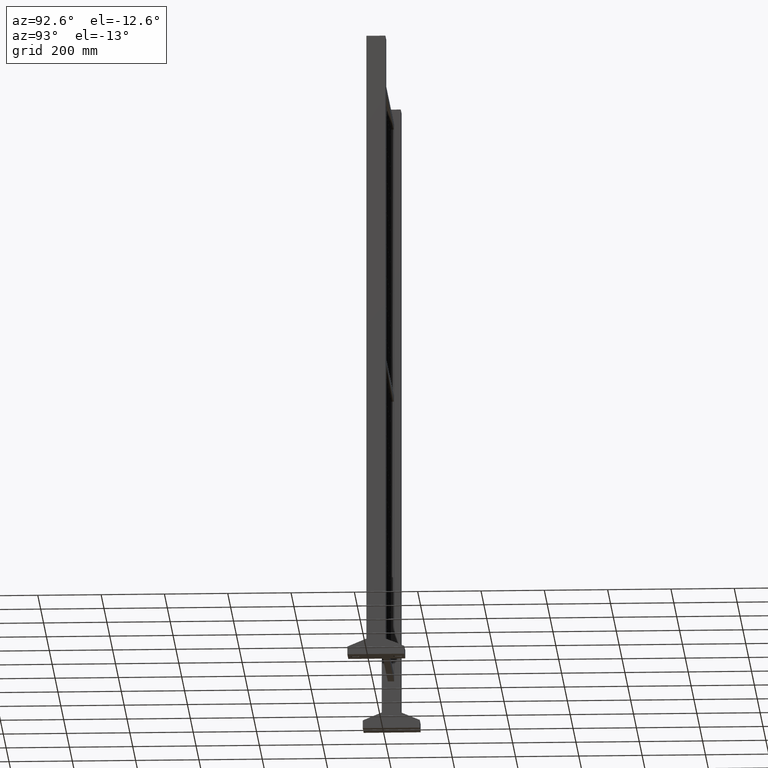
[diagram: clean part render]
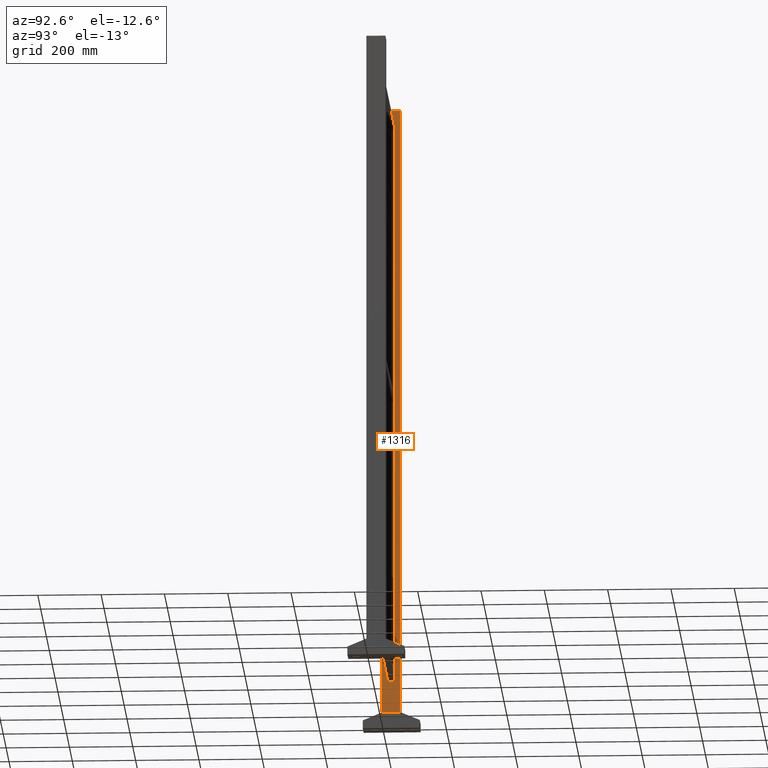
[diagram: same view with one face highlighted and labeled with its STEP entity id]
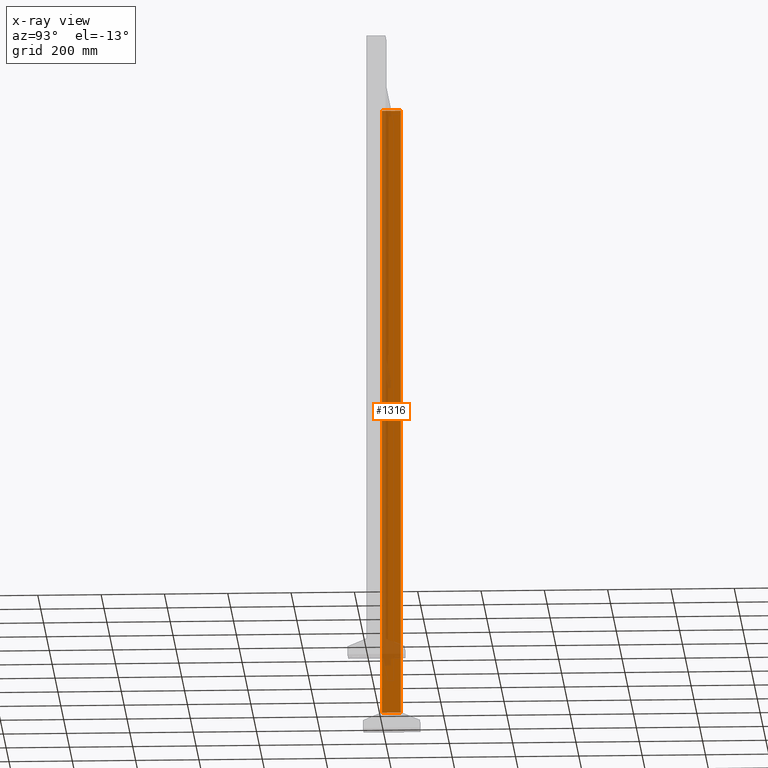
[diagram: x-ray of the same camera — body ghosted, the highlighted face saturated]
A machine part, auxiliary view. The second image highlights one B-rep face of the part: STEP entity #1316.
The next image is the same camera in x-ray: the body ghosted, the highlighted face saturated — about 33% of this face is hidden behind the body in this view.
In plain terms, the highlighted planar face has unit normal (1, 0, 0).
Its self-contained STEP definition (entity closure, byte-faithful):
#128=LINE('',#4552,#222);
#132=LINE('',#4561,#226);
#135=LINE('',#4567,#229);
#138=LINE('',#4573,#232);
#222=VECTOR('',#3916,1.);
#226=VECTOR('',#3922,1.);
#229=VECTOR('',#3927,1.);
#232=VECTOR('',#3932,1.);
#946=PLANE('',#3160);
#1097=FACE_OUTER_BOUND('',#1818,.T.);
#1316=ADVANCED_FACE('',(#1097),#946,.T.);
#1818=EDGE_LOOP('',(#2245,#2246,#2247,#2248));
#2245=ORIENTED_EDGE('',*,*,#2663,.T.);
#2246=ORIENTED_EDGE('',*,*,#2667,.T.);
#2247=ORIENTED_EDGE('',*,*,#2670,.T.);
#2248=ORIENTED_EDGE('',*,*,#2673,.T.);
#2447=VERTEX_POINT('',#4553);
#2448=VERTEX_POINT('',#4554);
#2451=VERTEX_POINT('',#4562);
#2453=VERTEX_POINT('',#4568);
#2663=EDGE_CURVE('',#2447,#2448,#128,.T.);
#2667=EDGE_CURVE('',#2448,#2451,#132,.T.);
#2670=EDGE_CURVE('',#2451,#2453,#135,.T.);
#2673=EDGE_CURVE('',#2453,#2447,#138,.T.);
#3160=AXIS2_PLACEMENT_3D('',#4577,#3938,#3939);
#3916=DIRECTION('',(0.,0.,-1.));
#3922=DIRECTION('',(-1.,0.,0.));
#3927=DIRECTION('',(1.78286071528963E-18,0.,1.));
#3932=DIRECTION('',(1.,0.,0.));
#3938=DIRECTION('',(0.,1.,0.));
#3939=DIRECTION('',(0.,0.,1.));
#4552=CARTESIAN_POINT('',(30.,30.,1996.));
#4553=CARTESIAN_POINT('',(30.,30.,1996.));
#4554=CARTESIAN_POINT('',(30.,30.,50.));
#4561=CARTESIAN_POINT('',(30.,30.,50.));
#4562=CARTESIAN_POINT('',(-30.,30.,50.));
#4567=CARTESIAN_POINT('',(-30.,30.,50.));
#4568=CARTESIAN_POINT('',(-30.,30.,1996.));
#4573=CARTESIAN_POINT('',(-30.,30.,1996.));
#4577=CARTESIAN_POINT('',(0.,30.,0.));